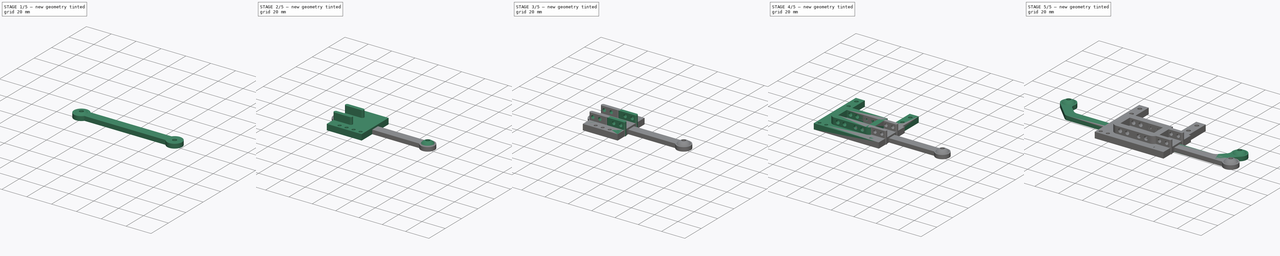
[diagram: build sequence overview — one tinted view per stage of 5, left to right]
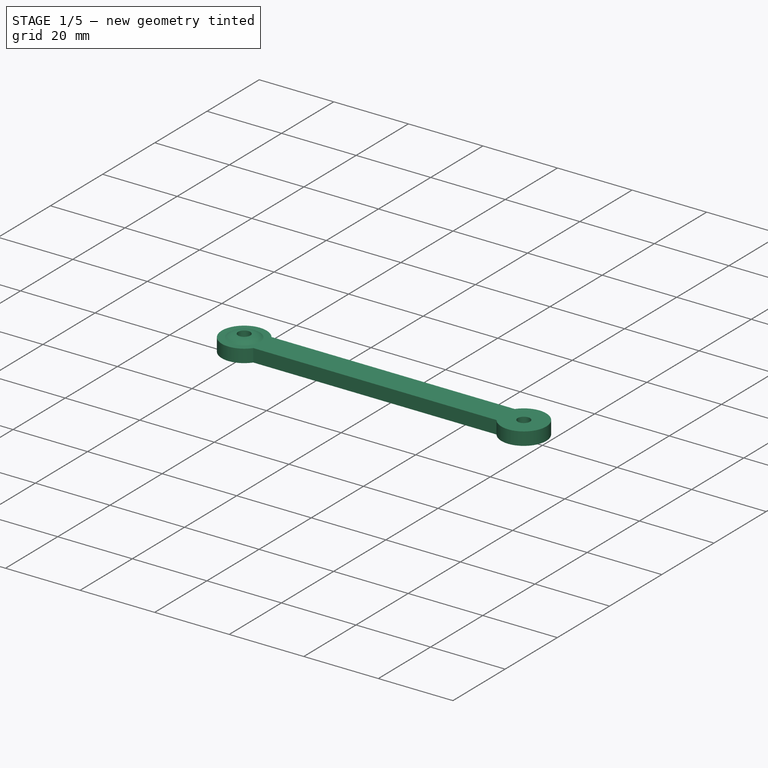
[diagram: stage 1 of 5 — iso view after this stage's code; geometry added in this stage tinted green]
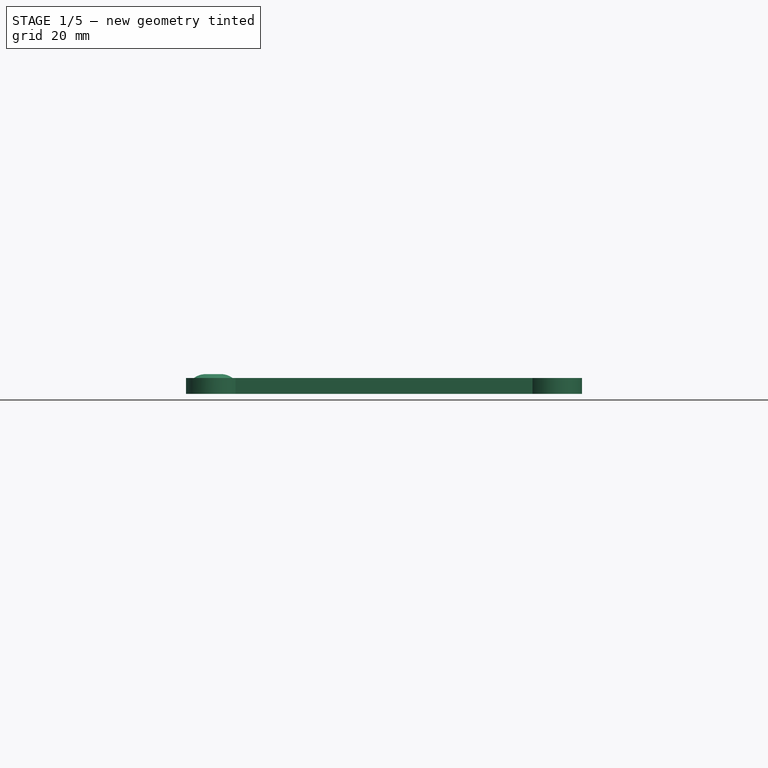
[diagram: stage 1 of 5 — front view after this stage's code; geometry added in this stage tinted green]
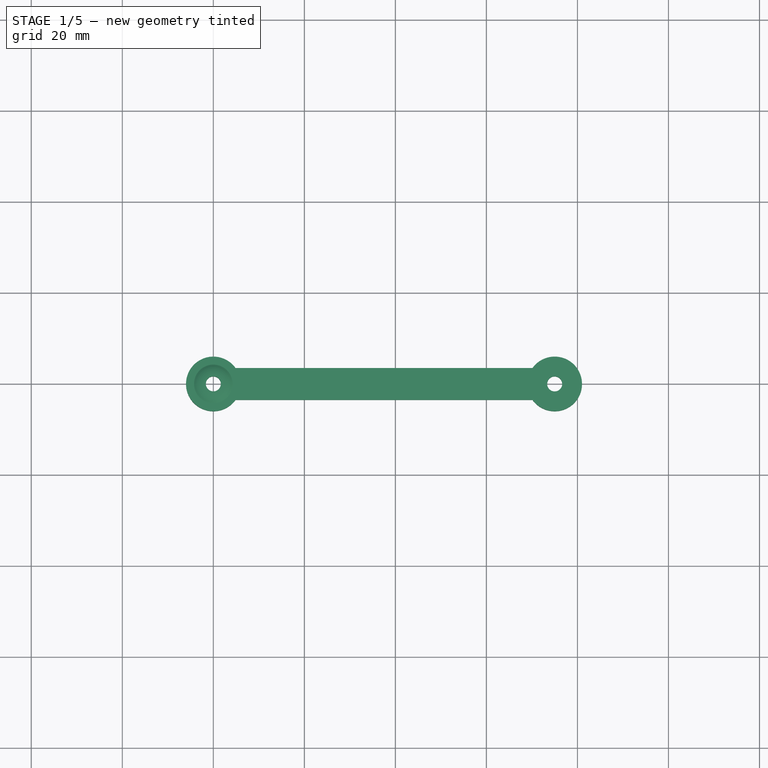
[diagram: stage 1 of 5 — top view after this stage's code; geometry added in this stage tinted green]
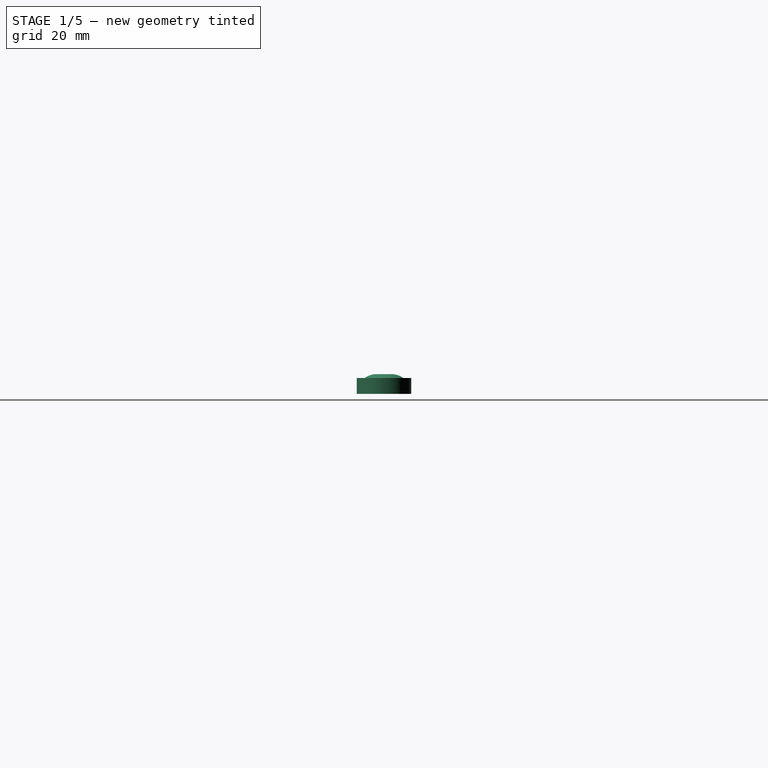
[diagram: stage 1 of 5 — right view after this stage's code; geometry added in this stage tinted green]
FCSTD DOCUMENT  (FreeCAD 0.20R29177 +426 (Git))
Label: frontalConnectors
License: All rights reserved
LicenseURL: http://en.wikipedia.org/wiki/All_rights_reserved
objects: Sketcher::SketchObject×16, PartDesign::Pad×9, PartDesign::Body×6, PartDesign::Revolution×4, PartDesign::Pocket×3, PartDesign::Line×2, Spreadsheet::Sheet×1
note: 56 computed .brp shape members not serialized (recipe doc carries the construction recipe); baked Part::Feature solids carry a one-line shape summary decoded from their .brp

FEATURE [PartDesign::Body] Body003  label="Body003SideCoverRight"
  Group = -> [Sketch009,Pad005,Sketch010,Pad006,Sketch011,Pocket002]
  Origin = -> Origin003
  Tip = -> Pocket002
FEATURE [Sketcher::SketchObject] Sketch012
  FullyConstrained = true
  MapMode = 5
  Support = -> [XY_Plane004]
  expr: Constraints[12] = Spreadsheet.connWidth
  expr: Constraints[16] = Spreadsheet.screwLose
  expr: Constraints[4] = Spreadsheet.frontSteeringRodLength
  expr: Constraints[6] = Spreadsheet.connEndR
  sketch-geometry (6):
    g0: ArcOfCircle CenterX=0 CenterY=0 CenterZ=0 NormalX=0 NormalY=0 NormalZ=1 AngleXU=0 Radius=6 StartAngle=0.622827 EndAngle=5.66036
    g1: LineSegment StartX=4.8734 StartY=3.5 StartZ=0 EndX=70.1266 EndY=3.5 EndZ=0
    g2: LineSegment StartX=70.1266 StartY=-3.5 StartZ=0 EndX=4.8734 EndY=-3.5 EndZ=0
    g3: ArcOfCircle CenterX=75 CenterY=0 CenterZ=0 NormalX=0 NormalY=0 NormalZ=1 AngleXU=0 Radius=6 StartAngle=3.76442 EndAngle=8.80195
    g4: Circle CenterX=0 CenterY=0 CenterZ=0 NormalX=0 NormalY=0 NormalZ=1 AngleXU=0 Radius=1.65
    g5: Circle CenterX=75 CenterY=0 CenterZ=0 NormalX=0 NormalY=0 NormalZ=1 AngleXU=0 Radius=1.65
  constraints (17):
    c: Coincident(g0,g-1)
    c: Horizontal(g1)
    c: Horizontal(g2)
    c: PointOnObject(g3,g-1)
    c: DistanceX(g0,g3) = 75
    c: Equal(g0,g3)
    c: Radius(g0) = 6
    c: Coincident(g1,g0)
    c: Coincident(g2,g0)
    c: Coincident(g3,g1)
    c: Coincident(g3,g2)
    c: Symmetric(g0,g0,g-1)
    c: DistanceY(g0,g0) = 7
    c: Coincident(g4,g0)
    c: Coincident(g5,g3)
    c: Equal(g4,g5)
    c: Radius(g4) = 1.65
FEATURE [PartDesign::Pad] Pad007
  Direction = (0,0,1)
  Length = 3.5
  Length2 = 10
  Profile = -> Sketch012
  ReferenceAxis = -> Sketch012 [N_Axis]
  Type = 0
  expr: Length = Spreadsheet.connPad
FEATURE [Sketcher::SketchObject] Sketch013
  FullyConstrained = true
  MapMode = 5
  Placement = pos=(0,0,0) rot=(1,0,0;1.5708rad)
  Support = -> [XZ_Plane004]
  expr: Constraints[0] = Spreadsheet.screwLose
  expr: Constraints[7] = Spreadsheet.connEndR - Spreadsheet.screwLose
  sketch-geometry (3):
    g0: ArcOfCircle CenterX=-1.65 CenterY=0 CenterZ=0 NormalX=0 NormalY=0 NormalZ=1 AngleXU=0 Radius=4.35 StartAngle=1.5708 EndAngle=3.14159
    g1: LineSegment StartX=-6 StartY=0 StartZ=0 EndX=-1.65 EndY=0 EndZ=0
    g2: LineSegment StartX=-1.65 StartY=0 StartZ=0 EndX=-1.65 EndY=4.35 EndZ=0
  constraints (9):
    c: DistanceX(g0,g-1) = 1.65
    c: Coincident(g1,g0)
    c: Horizontal(g1)
    c: Coincident(g2,g0)
    c: Vertical(g2)
    c: Coincident(g0,g1)
    c: Coincident(g0,g2)
    c: DistanceX(g1,g1) = 4.35
    c: PointOnObject(g0,g-1)
FEATURE [PartDesign::Revolution] Revolution002
  Angle = 360
  Axis = (0,-2e-16,1)
  Base = (0,0,0)
  BaseFeature = -> Pad007
  Profile = -> Sketch013
  ReferenceAxis = -> Sketch013 [V_Axis]
FEATURE [PartDesign::Body] Body004  label="Body004FrontSteeringRod"
  Group = -> [Sketch012,Pad007,Sketch013,Revolution002,Sketch014,Revolution003]
  Origin = -> Origin004
  Tip = -> Revolution003
FEATURE [Sketcher::SketchObject] Sketch015
  FullyConstrained = false
  MapMode = 5
  Support = -> [XY_Plane005]
  expr: Constraints[1] = Spreadsheet.screwLose
  sketch-geometry (2):
    g0: Circle CenterX=0 CenterY=0 CenterZ=0 NormalX=0 NormalY=0 NormalZ=1 AngleXU=0 Radius=1.65
    g1: Circle CenterX=0 CenterY=0 CenterZ=0 NormalX=0 NormalY=0 NormalZ=1 AngleXU=0 Radius=3.33495
  constraints (3):
    c: Coincident(g0,g-1)
    c: Radius(g0) = 1.65
    c: Coincident(g1,g0)
FEATURE [PartDesign::Pad] Pad008
  Direction = (0,0,1)
  Length = 2
  Length2 = 10
  Profile = -> Sketch015
  ReferenceAxis = -> Sketch015 [N_Axis]
  Type = 0
FEATURE [PartDesign::Body] Body005  label="Body005Test"
  Group = -> [Sketch015,Pad008]
  Origin = -> Origin005
  Tip = -> Pad008
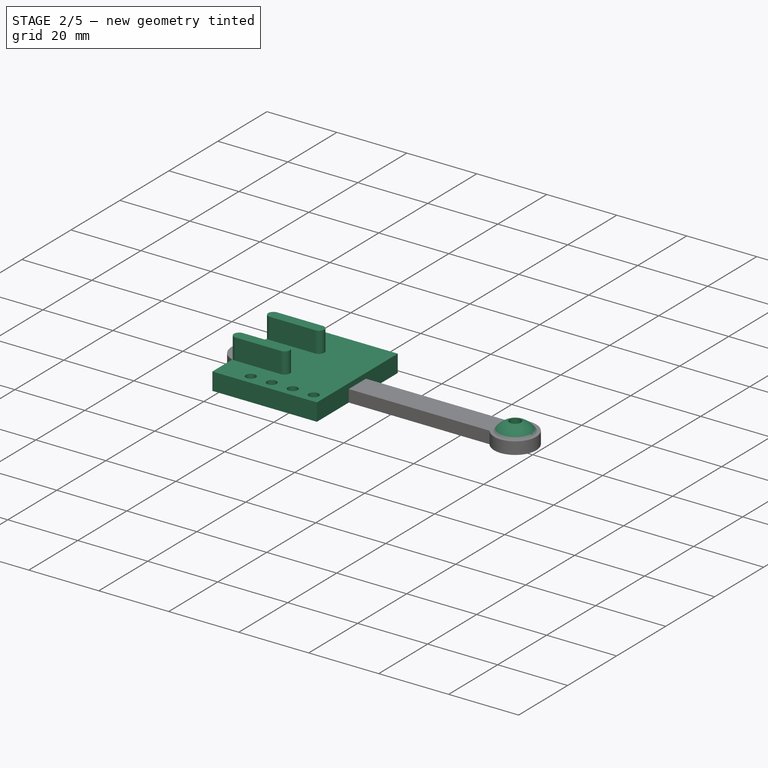
[diagram: stage 2 of 5 — iso view after this stage's code; geometry added in this stage tinted green]
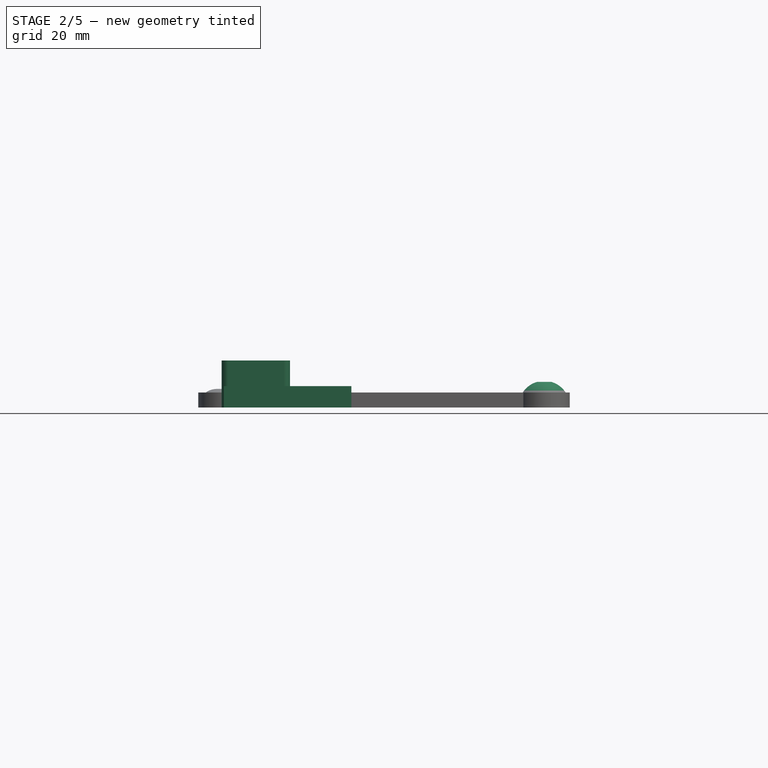
[diagram: stage 2 of 5 — front view after this stage's code; geometry added in this stage tinted green]
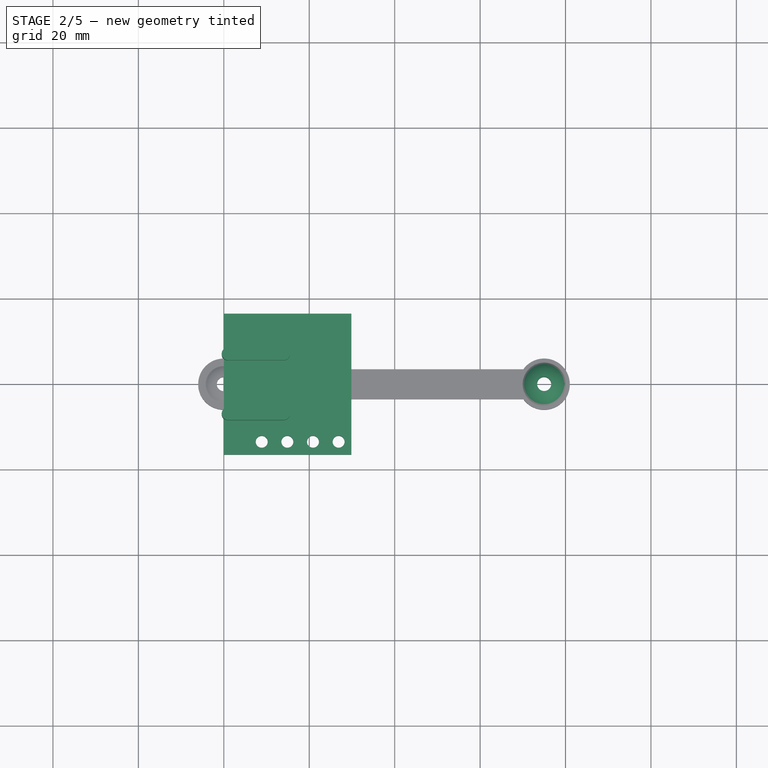
[diagram: stage 2 of 5 — top view after this stage's code; geometry added in this stage tinted green]
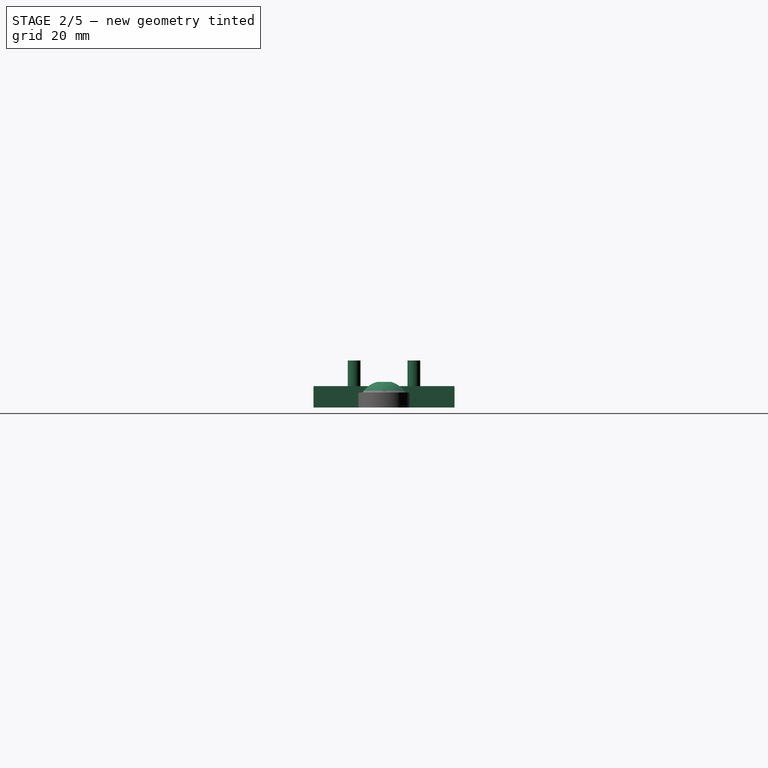
[diagram: stage 2 of 5 — right view after this stage's code; geometry added in this stage tinted green]
FEATURE [PartDesign::Body] Body002  label="Body002SideCover"
  Group = -> [Sketch006,Pad003,Sketch007,Pad004,Sketch008,Pocket001]
  Origin = -> Origin002
  Tip = -> Pocket001
FEATURE [Sketcher::SketchObject] Sketch009
  FullyConstrained = true
  MapMode = 5
  Support = -> [XY_Plane003]
  expr: Constraints[14] = Spreadsheet.serverHolderScrewDistBetween
  expr: Constraints[16] = Spreadsheet.screwTight
  expr: Constraints[17] = Spreadsheet.serverConnCenterToRear
  expr: Constraints[19] = Spreadsheet.serverHolderScrewDistBetween
  expr: Constraints[22] = Spreadsheet.serverHolderScrewDistBetween
  expr: Constraints[23] = Spreadsheet.serverConnCenterToRear
  expr: Constraints[24] = Spreadsheet.serverHolderScrewToSide
  expr: Constraints[25] = Spreadsheet.serverHolderScrewToSide
  expr: Constraints[9] = Spreadsheet.sideCoverFullWidth
  sketch-geometry (9):
    g0: LineSegment StartX=0 StartY=16.5 StartZ=0 EndX=29.875 EndY=16.5 EndZ=0
    g1: LineSegment StartX=29.875 StartY=16.5 StartZ=0 EndX=29.875 EndY=-16.5 EndZ=0
    g2: LineSegment StartX=29.875 StartY=-16.5 StartZ=0 EndX=0 EndY=-16.5 EndZ=0
    g3: LineSegment StartX=0 StartY=-16.5 StartZ=0 EndX=0 EndY=16.5 EndZ=0
    g4: LineSegment StartX=0 StartY=-13.5 StartZ=0 EndX=26.875 EndY=-13.5 EndZ=0
    g5: Circle CenterX=8.875 CenterY=-13.5 CenterZ=0 NormalX=0 NormalY=0 NormalZ=1 AngleXU=0 Radius=1.4
    g6: Circle CenterX=14.875 CenterY=-13.5 CenterZ=0 NormalX=0 NormalY=0 NormalZ=1 AngleXU=0 Radius=1.4
    g7: Circle CenterX=26.875 CenterY=-13.5 CenterZ=0 NormalX=0 NormalY=0 NormalZ=1 AngleXU=0 Radius=1.4
    g8: Circle CenterX=20.875 CenterY=-13.5 CenterZ=0 NormalX=0 NormalY=0 NormalZ=1 AngleXU=0 Radius=1.4
  constraints (27):
    c: Coincident(g0,g1)
    c: Coincident(g1,g2)
    c: Coincident(g2,g3)
    c: Coincident(g3,g0)
    c: Horizontal(g0)
    c: Horizontal(g2)
    c: Vertical(g1)
    c: Vertical(g3)
    c: PointOnObject(g2,g-2)
    c: DistanceX(g2,g2) = 29.875
    c: PointOnObject(g4,g3)
    c: Horizontal(g4)
    c: PointOnObject(g5,g4)
    c: PointOnObject(g6,g4)
    c: DistanceX(g5,g6) = 6
    c: Equal(g6,g5)
    c: Radius(g6) = 1.4
    c: DistanceY(g-1,g0) = 16.5
    c: PointOnObject(g8,g4)
    c: DistanceX(g8,g7) = 6
    c: Equal(g7,g8)
    c: Equal(g8,g6)
    c: DistanceX(g6,g8) = 6
    c: DistanceY(g1,g-1) = 16.5
    c: DistanceY(g2,g4) = 3
    c: DistanceX(g4,g1) = 3
    c: Coincident(g7,g4)
FEATURE [PartDesign::Pad] Pad005
  Direction = (0,0,1)
  Length = 5
  Length2 = 10
  Profile = -> Sketch009
  ReferenceAxis = -> Sketch009 [N_Axis]
  Type = 0
  expr: Length = Spreadsheet.sideCoverPad
FEATURE [Sketcher::SketchObject] Sketch010  label="Sketch007Conn001"
  FullyConstrained = true
  MapMode = 5
  Support = -> [XY_Plane003]
  expr: Constraints[13] = Spreadsheet.sideCoverDownPad
  expr: Constraints[14] = Spreadsheet.sideConnWidth
  expr: Constraints[15] = Spreadsheet.sideCoverFullWidth - (Spreadsheet.serverHolderScrewDistBetween + Spreadsheet.sideCoverCenterToFirstScrew + 2)
  expr: Constraints[16] = Spreadsheet.sideCoverFullWidth - (Spreadsheet.sideCoverCenterToFirstScrew - 5)
  sketch-geometry (8):
    g0: ArcOfCircle CenterX=1 CenterY=7 CenterZ=0 NormalX=0 NormalY=0 NormalZ=1 AngleXU=0 Radius=1.5 StartAngle=1.5708 EndAngle=4.71239
    g1: ArcOfCircle CenterX=14 CenterY=7 CenterZ=0 NormalX=0 NormalY=0 NormalZ=1 AngleXU=0 Radius=1.5 StartAngle=4.71239 EndAngle=7.85398
    g2: LineSegment StartX=1 StartY=5.5 StartZ=0 EndX=14 EndY=5.5 EndZ=0
    g3: LineSegment StartX=14 StartY=8.5 StartZ=0 EndX=1 EndY=8.5 EndZ=0
    g4: ArcOfCircle CenterX=1 CenterY=-7 CenterZ=0 NormalX=0 NormalY=0 NormalZ=1 AngleXU=0 Radius=1.5 StartAngle=1.5708 EndAngle=4.71239
    g5: ArcOfCircle CenterX=14 CenterY=-7 CenterZ=0 NormalX=0 NormalY=0 NormalZ=1 AngleXU=0 Radius=1.5 StartAngle=4.71239 EndAngle=7.85398
    g6: LineSegment StartX=1 StartY=-8.5 StartZ=0 EndX=14 EndY=-8.5 EndZ=0
    g7: LineSegment StartX=14 StartY=-5.5 StartZ=0 EndX=1 EndY=-5.5 EndZ=0
  constraints (18):
    c: Tangent(g0,g2) = -1.5708
    c: Tangent(g2,g1) = -1.5708
    c: Tangent(g1,g3) = -1.5708
    c: Tangent(g3,g0) = -1.5708
    c: Equal(g0,g1)
    c: Horizontal(g2)
    c: Tangent(g4,g6) = -1.5708
    c: Tangent(g6,g5) = -1.5708
    c: Tangent(g5,g7) = -1.5708
    c: Tangent(g7,g4) = -1.5708
    c: Equal(g4,g5)
    c: Horizontal(g6)
    c: Symmetric(g0,g4,g-1)
    c: Distance(g1,g1) = 3
    c: Distance(g0,g4) = 11
    c: DistanceX(g-1,g0) = 1
    c: DistanceX(g-1,g1) = 14
    c: Symmetric(g1,g5,g-1)
FEATURE [PartDesign::Pad] Pad006
  BaseFeature = -> Pad005
  Direction = (0,0,1)
  Length = 11
  Length2 = 10
  Profile = -> Sketch010
  ReferenceAxis = -> Sketch010 [N_Axis]
  Type = 0
  expr: Length = Spreadsheet.serverHolderCenterConnHeight
FEATURE [Sketcher::SketchObject] Sketch014
  AttachmentOffset = pos=(75,0,0) rot=(0,0,1;0rad)
  FullyConstrained = true
  MapMode = 5
  Placement = pos=(75,0,0) rot=(1,0,0;1.5708rad)
  Support = -> [XZ_Plane004]
  expr: .AttachmentOffset.Base.x = Spreadsheet.frontSteeringRodLength
  expr: Constraints[0] = Spreadsheet.connEndR
  expr: Constraints[6] = Spreadsheet.screwLose
  expr: Constraints[8] = Spreadsheet.connEndR - Spreadsheet.screwLose
  expr: Constraints[9] = Spreadsheet.connEndR
  sketch-geometry (3):
    g0: ArcOfCircle CenterX=0.0044128 CenterY=0.230074 CenterZ=0 NormalX=0 NormalY=0 NormalZ=1 AngleXU=0 Radius=6 StartAngle=6.24483 EndAngle=7.57616
    g1: LineSegment StartX=6 StartY=0 StartZ=0 EndX=1.65 EndY=0 EndZ=0
    g2: LineSegment StartX=1.65 StartY=0 StartZ=0 EndX=1.65 EndY=6 EndZ=0
  constraints (10):
    c: Radius(g0) = 6
    c: Coincident(g1,g0)
    c: Horizontal(g1)
    c: Coincident(g2,g1)
    c: Vertical(g2)
    c: Coincident(g0,g2)
    c: DistanceX(g-1,g1) = 1.65
    c: PointOnObject(g0,g-1)
    c: DistanceX(g1,g1) = 4.35
    c: DistanceY(g2,g2) = 6
FEATURE [PartDesign::Revolution] Revolution003
  Angle = 360
  Axis = (0,-2e-16,1)
  Base = (75,0,0)
  BaseFeature = -> Revolution002
  Profile = -> Sketch014
  ReferenceAxis = -> Sketch014 [V_Axis]
  Reversed = true
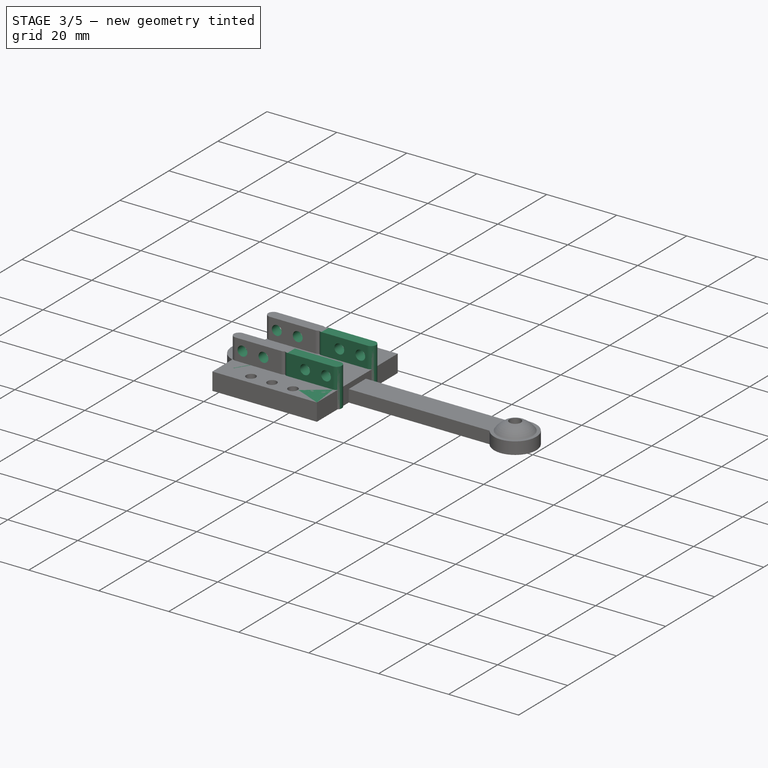
[diagram: stage 3 of 5 — iso view after this stage's code; geometry added in this stage tinted green]
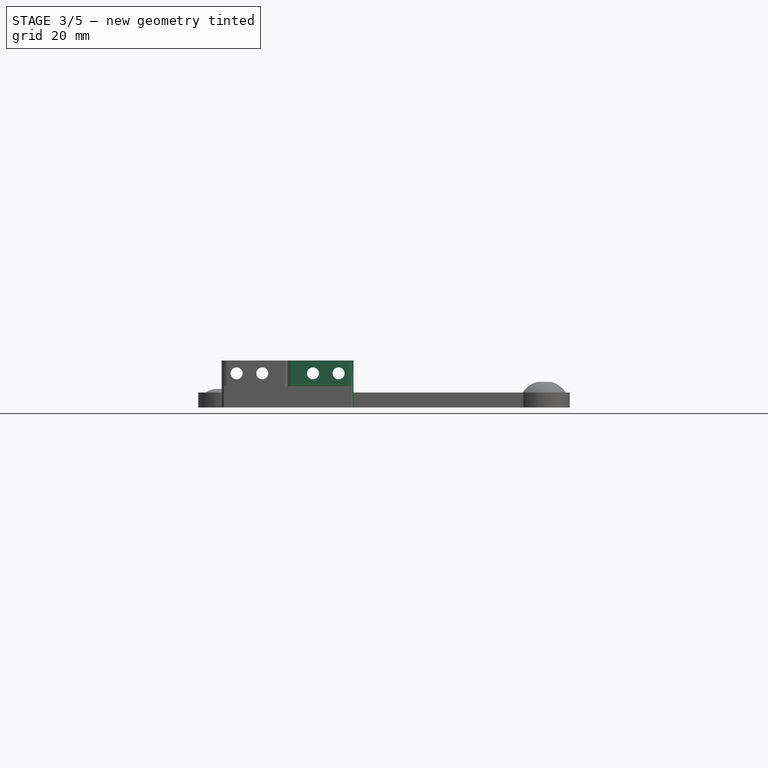
[diagram: stage 3 of 5 — front view after this stage's code; geometry added in this stage tinted green]
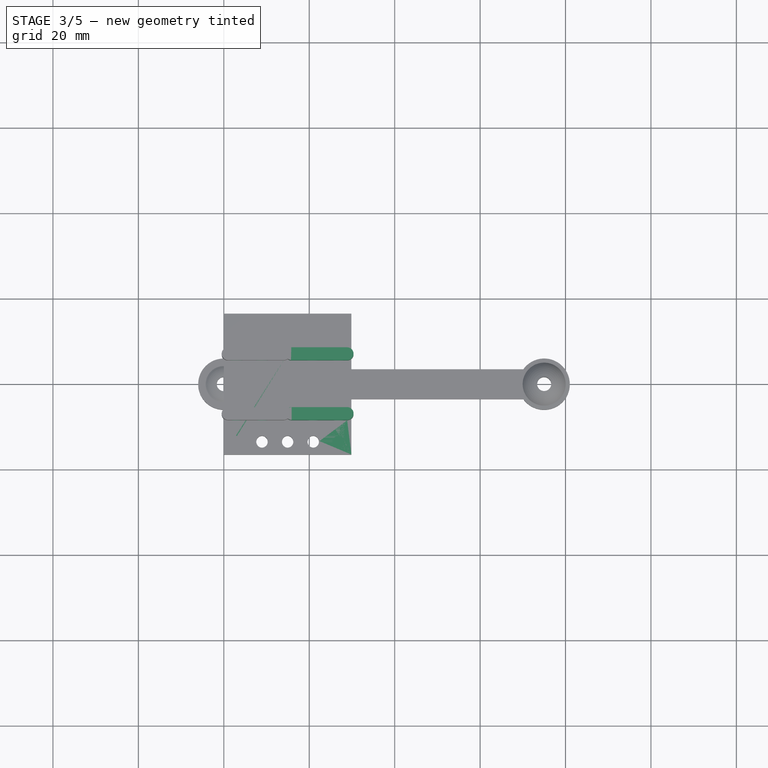
[diagram: stage 3 of 5 — top view after this stage's code; geometry added in this stage tinted green]
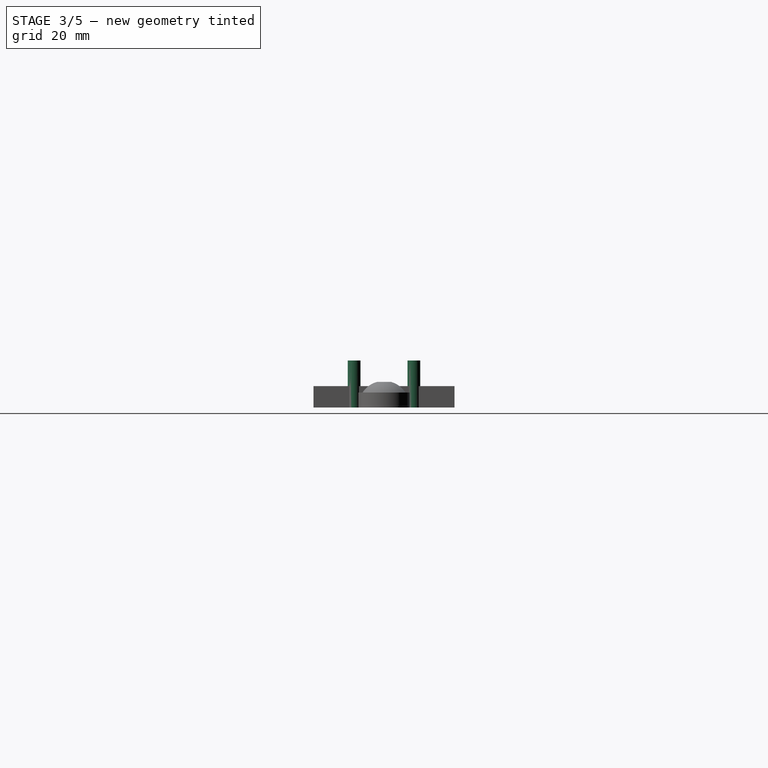
[diagram: stage 3 of 5 — right view after this stage's code; geometry added in this stage tinted green]
FEATURE [PartDesign::Body] Body001  label="Body001ServoHolder"
  Group = -> [Sketch003,Pad001,Sketch004,Pad002,Sketch005,Pocket]
  Origin = -> Origin001
  Tip = -> Pocket
FEATURE [Sketcher::SketchObject] Sketch006
  FullyConstrained = false
  MapMode = 5
  Support = -> [XY_Plane002]
  expr: Constraints[14] = Spreadsheet.serverHolderScrewDistBetween
  expr: Constraints[16] = Spreadsheet.screwTight
  expr: Constraints[17] = Spreadsheet.serverHolderScrewToSide
  expr: Constraints[18] = Spreadsheet.serverConnCenterToRear
  expr: Constraints[21] = Spreadsheet.serverHolderScrewDistBetween
  expr: Constraints[24] = Spreadsheet.serverHolderScrewDistBetween
  expr: Constraints[25] = Spreadsheet.serverConnCenterToRear
  expr: Constraints[26] = Spreadsheet.serverHolderScrewToSide
  expr: Constraints[9] = Spreadsheet.sideCoverFullWidth
  sketch-geometry (9):
    g0: LineSegment StartX=0 StartY=16.5 StartZ=0 EndX=29.875 EndY=16.5 EndZ=0
    g1: LineSegment StartX=29.875 StartY=16.5 StartZ=0 EndX=29.875 EndY=-16.5 EndZ=0
    g2: LineSegment StartX=29.875 StartY=-16.5 StartZ=0 EndX=0 EndY=-16.5 EndZ=0
    g3: LineSegment StartX=0 StartY=-16.5 StartZ=0 EndX=0 EndY=16.5 EndZ=0
    g4: LineSegment StartX=0 StartY=-13.5 StartZ=0 EndX=42.8323 EndY=-13.5 EndZ=0
    g5: Circle CenterX=3 CenterY=-13.5 CenterZ=0 NormalX=0 NormalY=0 NormalZ=1 AngleXU=0 Radius=1.4
    g6: Circle CenterX=9 CenterY=-13.5 CenterZ=0 NormalX=0 NormalY=0 NormalZ=1 AngleXU=0 Radius=1.4
    g7: Circle CenterX=21 CenterY=-13.5 CenterZ=0 NormalX=0 NormalY=0 NormalZ=1 AngleXU=0 Radius=1.4
    g8: Circle CenterX=15 CenterY=-13.5 CenterZ=0 NormalX=0 NormalY=0 NormalZ=1 AngleXU=0 Radius=1.4
  constraints (27):
    c: Coincident(g0,g1)
    c: Coincident(g1,g2)
    c: Coincident(g2,g3)
    c: Coincident(g3,g0)
    c: Horizontal(g0)
    c: Horizontal(g2)
    c: Vertical(g1)
    c: Vertical(g3)
    c: PointOnObject(g2,g-2)
    c: DistanceX(g2,g2) = 29.875
    c: PointOnObject(g4,g3)
    c: Horizontal(g4)
    c: PointOnObject(g5,g4)
    c: PointOnObject(g6,g4)
    c: DistanceX(g5,g6) = 6
    c: Equal(g6,g5)
    c: Radius(g6) = 1.4
    c: DistanceX(g-1,g5) = 3
    c: DistanceY(g-1,g0) = 16.5
    c: PointOnObject(g7,g4)
    c: PointOnObject(g8,g4)
    c: DistanceX(g8,g7) = 6
    c: Equal(g7,g8)
    c: Equal(g8,g6)
    c: DistanceX(g6,g8) = 6
    c: DistanceY(g1,g-1) = 16.5
    c: DistanceY(g2,g4) = 3
FEATURE [PartDesign::Pad] Pad003
  Direction = (0,0,1)
  Length = 5
  Length2 = 10
  Profile = -> Sketch006
  ReferenceAxis = -> Sketch006 [N_Axis]
  Type = 0
  expr: Length = Spreadsheet.sideCoverPad
FEATURE [Sketcher::SketchObject] Sketch007  label="Sketch007Conn"
  FullyConstrained = true
  MapMode = 5
  Support = -> [XY_Plane002]
  expr: Constraints[13] = Spreadsheet.sideCoverDownPad
  expr: Constraints[14] = Spreadsheet.sideConnWidth
  expr: Constraints[15] = Spreadsheet.sideCoverCenterToFirstScrew - 5
  expr: Constraints[16] = Spreadsheet.serverHolderScrewDistBetween + Spreadsheet.sideCoverCenterToFirstScrew + 2
  sketch-geometry (8):
    g0: ArcOfCircle CenterX=15.875 CenterY=7 CenterZ=0 NormalX=0 NormalY=0 NormalZ=1 AngleXU=0 Radius=1.5 StartAngle=1.5708 EndAngle=4.71239
    g1: ArcOfCircle CenterX=28.875 CenterY=7 CenterZ=0 NormalX=0 NormalY=0 NormalZ=1 AngleXU=0 Radius=1.5 StartAngle=4.71239 EndAngle=7.85398
    g2: LineSegment StartX=15.875 StartY=5.5 StartZ=0 EndX=28.875 EndY=5.5 EndZ=0
    g3: LineSegment StartX=28.875 StartY=8.5 StartZ=0 EndX=15.875 EndY=8.5 EndZ=0
    g4: ArcOfCircle CenterX=15.875 CenterY=-7 CenterZ=0 NormalX=0 NormalY=0 NormalZ=1 AngleXU=0 Radius=1.5 StartAngle=1.5708 EndAngle=4.71239
    g5: ArcOfCircle CenterX=28.875 CenterY=-7 CenterZ=0 NormalX=0 NormalY=0 NormalZ=1 AngleXU=0 Radius=1.5 StartAngle=4.71239 EndAngle=7.85398
    g6: LineSegment StartX=15.875 StartY=-8.5 StartZ=0 EndX=28.875 EndY=-8.5 EndZ=0
    g7: LineSegment StartX=28.875 StartY=-5.5 StartZ=0 EndX=15.875 EndY=-5.5 EndZ=0
  constraints (18):
    c: Tangent(g0,g2) = -1.5708
    c: Tangent(g2,g1) = -1.5708
    c: Tangent(g1,g3) = -1.5708
    c: Tangent(g3,g0) = -1.5708
    c: Equal(g0,g1)
    c: Horizontal(g2)
    c: Tangent(g4,g6) = -1.5708
    c: Tangent(g6,g5) = -1.5708
    c: Tangent(g5,g7) = -1.5708
    c: Tangent(g7,g4) = -1.5708
    c: Equal(g4,g5)
    c: Horizontal(g6)
    c: Symmetric(g0,g4,g-1)
    c: Distance(g1,g1) = 3
    c: Distance(g0,g4) = 11
    c: DistanceX(g-1,g0) = 15.875
    c: DistanceX(g-1,g1) = 28.875
    c: Symmetric(g1,g5,g-1)
FEATURE [PartDesign::Pad] Pad004
  BaseFeature = -> Pad003
  Direction = (0,0,1)
  Length = 11
  Length2 = 10
  Profile = -> Sketch007
  ReferenceAxis = -> Sketch007 [N_Axis]
  Type = 0
  expr: Length = Spreadsheet.serverHolderCenterConnHeight
FEATURE [Sketcher::SketchObject] Sketch008
  FullyConstrained = false
  MapMode = 5
  Placement = pos=(0,0,0) rot=(1,0,0;1.5708rad)
  Support = -> [XZ_Plane002]
  expr: Constraints[1] = Spreadsheet.serverHolderScrewToSide + Spreadsheet.sideCoverPad
  expr: Constraints[4] = Spreadsheet.serverHolderScrewDistBetween
  expr: Constraints[5] = Spreadsheet.sideCoverCenterToFirstScrew
  expr: Constraints[7] = Spreadsheet.screwTight
  sketch-geometry (3):
    g0: LineSegment StartX=-3.8391 StartY=8 StartZ=0 EndX=32.0257 EndY=8 EndZ=0
    g1: Circle CenterX=20.875 CenterY=8 CenterZ=0 NormalX=0 NormalY=0 NormalZ=1 AngleXU=0 Radius=1.4
    g2: Circle CenterX=26.875 CenterY=8 CenterZ=0 NormalX=0 NormalY=0 NormalZ=1 AngleXU=0 Radius=1.4
  constraints (8):
    c: Horizontal(g0)
    c: DistanceY(g-1,g0) = 8
    c: PointOnObject(g1,g0)
    c: PointOnObject(g2,g0)
    c: DistanceX(g1,g2) = 6
    c: DistanceX(g-1,g1) = 20.875
    c: Equal(g2,g1)
    c: Radius(g2) = 1.4
FEATURE [PartDesign::Pocket] Pocket001
  BaseFeature = -> Pad004
  Direction = (0,1,2e-16)
  Length = 5
  Length2 = 5
  Midplane = true
  Profile = -> Sketch008
  ReferenceAxis = -> Sketch008 [N_Axis]
  Type = 1
FEATURE [Sketcher::SketchObject] Sketch011
  FullyConstrained = false
  MapMode = 5
  Placement = pos=(0,0,0) rot=(1,0,0;1.5708rad)
  Support = -> [XZ_Plane003]
  expr: Constraints[1] = Spreadsheet.serverHolderScrewToSide + Spreadsheet.sideCoverPad
  expr: Constraints[4] = Spreadsheet.serverHolderScrewDistBetween
  expr: Constraints[6] = Spreadsheet.screwTight
  expr: Constraints[7] = Spreadsheet.sideCoverFullWidth - Spreadsheet.sideCoverCenterToFirstScrew
  sketch-geometry (3):
    g0: LineSegment StartX=-3.8391 StartY=8 StartZ=0 EndX=32.0257 EndY=8 EndZ=0
    g1: Circle CenterX=3 CenterY=8 CenterZ=0 NormalX=0 NormalY=0 NormalZ=1 AngleXU=0 Radius=1.4
    g2: Circle CenterX=9 CenterY=8 CenterZ=0 NormalX=0 NormalY=0 NormalZ=1 AngleXU=0 Radius=1.4
  constraints (8):
    c: Horizontal(g0)
    c: DistanceY(g-1,g0) = 8
    c: PointOnObject(g1,g0)
    c: PointOnObject(g2,g0)
    c: DistanceX(g1,g2) = 6
    c: Equal(g2,g1)
    c: Radius(g2) = 1.4
    c: DistanceX(g-1,g2) = 9
FEATURE [PartDesign::Pocket] Pocket002
  BaseFeature = -> Pad006
  Direction = (0,1,2e-16)
  Length = 5
  Length2 = 5
  Midplane = true
  Profile = -> Sketch011
  ReferenceAxis = -> Sketch011 [N_Axis]
  Type = 1
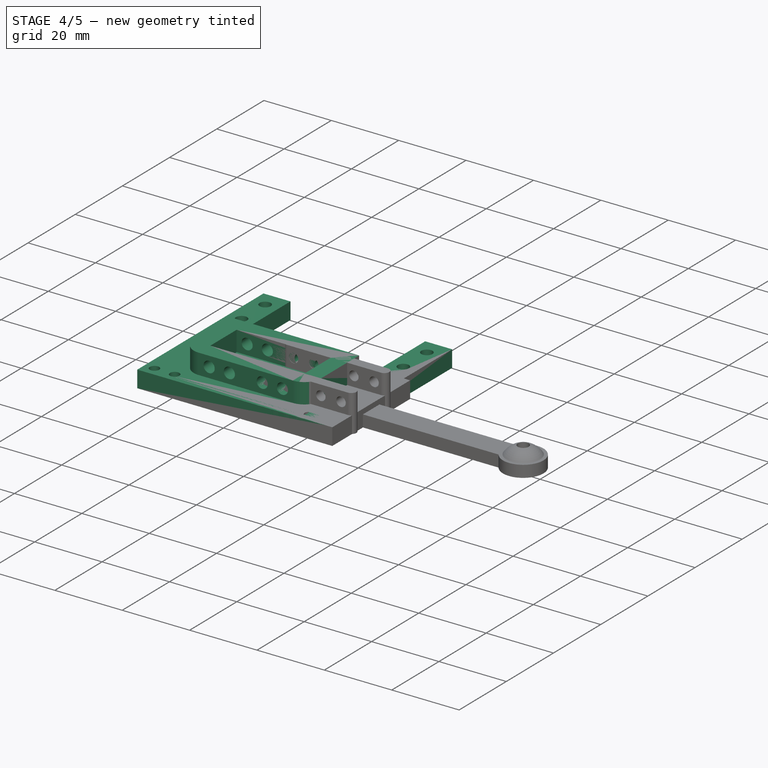
[diagram: stage 4 of 5 — iso view after this stage's code; geometry added in this stage tinted green]
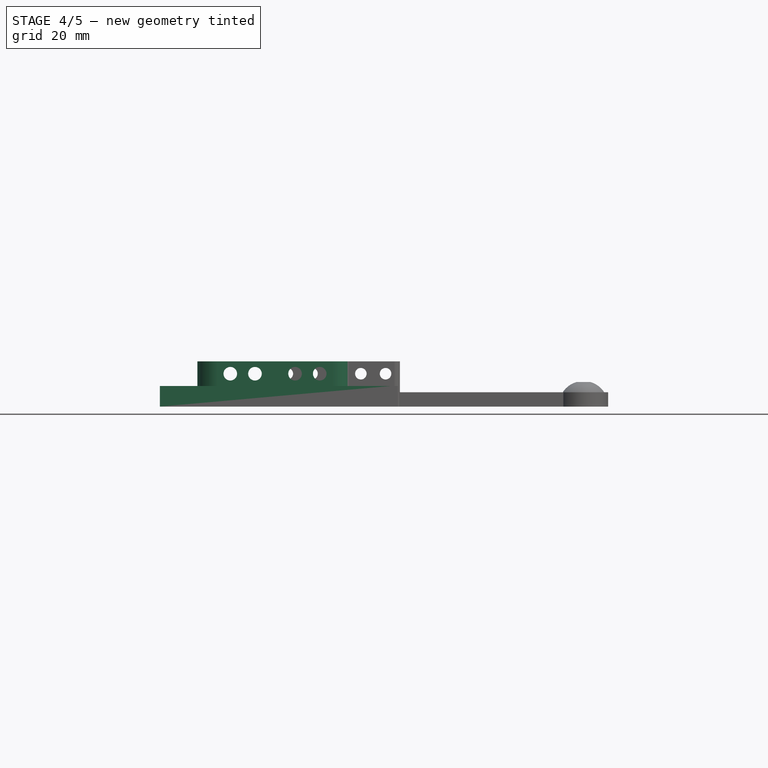
[diagram: stage 4 of 5 — front view after this stage's code; geometry added in this stage tinted green]
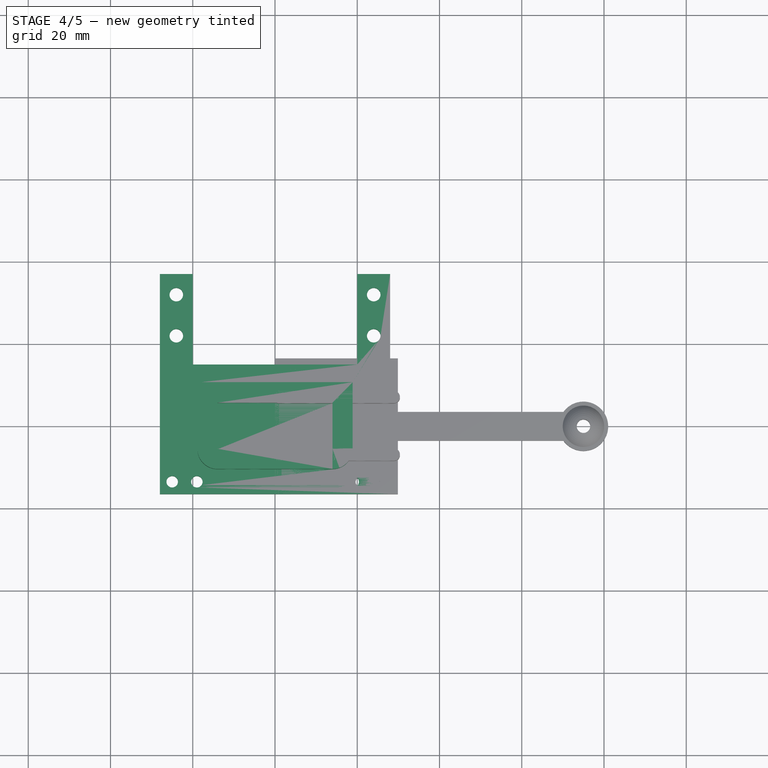
[diagram: stage 4 of 5 — top view after this stage's code; geometry added in this stage tinted green]
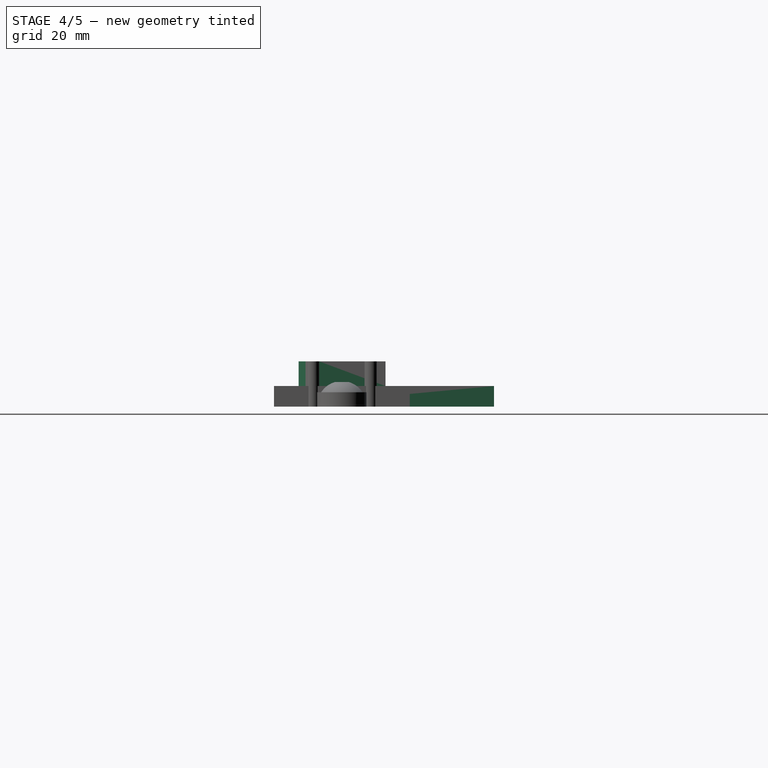
[diagram: stage 4 of 5 — right view after this stage's code; geometry added in this stage tinted green]
FEATURE [PartDesign::Body] Body  label="BodyLongTurnConnector"
  Group = -> [Sketch,Pad,DatumLine,DatumLine001,Sketch001,Revolution,Sketch002,Revolution001]
  Origin = -> Origin
  Tip = -> Revolution001
FEATURE [Sketcher::SketchObject] Sketch003  label="Sketch003ServoHolder"
  FullyConstrained = false
  MapMode = 5
  Support = -> [XY_Plane001]
  expr: Constraints[12] = Spreadsheet.servoHolderSideLen
  expr: Constraints[24] = Spreadsheet.servoHolderScrewToW
  expr: Constraints[26] = Spreadsheet.serverHolderCenterToScrewH
  expr: Constraints[27] = Spreadsheet.servoHolderScrewSep
  expr: Constraints[35] = Spreadsheet.screwLose
  expr: Constraints[38] = Spreadsheet.serverHolderScrewToSide
  expr: Constraints[39] = Spreadsheet.serverHolderScrewDistBetween
  expr: Constraints[43] = Spreadsheet.screwTight
  expr: Constraints[44] = Spreadsheet.servoHolderCenterConnHousingHalfH + Spreadsheet.serverConnSideAdj / 2 + Spreadsheet.serverHolderRearDistToHousingHolder
  expr: Constraints[46] = Spreadsheet.serverConnCenterToRear - Spreadsheet.serverHolderScrewToSide
  expr: Constraints[5] = Spreadsheet.servoHolderWidth
  expr: Constraints[6] = Spreadsheet.servoHolderH
  expr: Constraints[7] = Spreadsheet.servoHolderConnFrontLen
  sketch-geometry (20):
    g0: LineSegment StartX=-20 StartY=37 StartZ=0 EndX=-20 EndY=15 EndZ=0
    g1: LineSegment StartX=-20 StartY=15 StartZ=0 EndX=20 EndY=15 EndZ=0
    g2: LineSegment StartX=20 StartY=15 StartZ=0 EndX=20 EndY=37 EndZ=0
    g3: LineSegment StartX=20 StartY=37 StartZ=0 EndX=28 EndY=37 EndZ=0
    g4: LineSegment StartX=-20 StartY=37 StartZ=0 EndX=-28 EndY=37 EndZ=0
    g5: LineSegment StartX=28 StartY=37 StartZ=0 EndX=28 EndY=-16.5 EndZ=0
    g6: LineSegment StartX=-28 StartY=37 StartZ=0 EndX=-28 EndY=-16.5 EndZ=0
    g7: LineSegment StartX=-28 StartY=-16.5 StartZ=0 EndX=28 EndY=-16.5 EndZ=0
    g8: LineSegment StartX=24 StartY=32 StartZ=0 EndX=24 EndY=22 EndZ=0
    g9: LineSegment StartX=24 StartY=32 StartZ=0 EndX=-24 EndY=32 EndZ=0
    g10: LineSegment StartX=-24 StartY=32 StartZ=0 EndX=-24 EndY=22 EndZ=0
    g11: Circle CenterX=24 CenterY=32 CenterZ=0 NormalX=0 NormalY=0 NormalZ=1 AngleXU=0 Radius=1.65
    g12: Circle CenterX=-24 CenterY=32 CenterZ=0 NormalX=0 NormalY=0 NormalZ=1 AngleXU=0 Radius=1.65
    g13: Circle CenterX=-24 CenterY=22 CenterZ=0 NormalX=0 NormalY=0 NormalZ=1 AngleXU=0 Radius=1.65
    g14: Circle CenterX=24 CenterY=22 CenterZ=0 NormalX=0 NormalY=0 NormalZ=1 AngleXU=0 Radius=1.65
    g15: Circle CenterX=25 CenterY=-13.5 CenterZ=0 NormalX=0 NormalY=0 NormalZ=1 AngleXU=0 Radius=1.4
    g16: Circle CenterX=-25 CenterY=-13.5 CenterZ=0 NormalX=0 NormalY=0 NormalZ=1 AngleXU=0 Radius=1.4
    g17: Circle CenterX=-19 CenterY=-13.5 CenterZ=0 NormalX=0 NormalY=0 NormalZ=1 AngleXU=0 Radius=1.4
    g18: Circle CenterX=19 CenterY=-13.5 CenterZ=0 NormalX=0 NormalY=0 NormalZ=1 AngleXU=0 Radius=1.4
    g19: LineSegment StartX=12.7862 StartY=-13.5 StartZ=0 EndX=34.2165 EndY=-13.5 EndZ=0
  constraints (49):
    c: Coincident(g1,g0)
    c: Coincident(g2,g1)
    c: Vertical(g2)
    c: Symmetric(g1,g0,g-2)
    c: Symmetric(g2,g0,g-2)
    c: DistanceX(g1,g1) = 40
    c: DistanceY(g2,g2) = 22
    c: DistanceY(g-1,g1) = 15
    c: Coincident(g3,g2)
    c: Horizontal(g3)
    c: Coincident(g4,g0)
    c: Symmetric(g3,g4,g-2)
    c: DistanceX(g3,g3) = 8
    c: Coincident(g5,g3)
    c: Vertical(g5)
    c: Coincident(g6,g4)
    c: Vertical(g6)
    c: Coincident(g7,g6)
    c: Coincident(g7,g5)
    c: Horizontal(g7)
    c: Vertical(g8)
    c: Coincident(g9,g8)
    c: Coincident(g10,g9)
    c: Symmetric(g8,g9,g-2)
    c: DistanceX(g1,g8) = 4
    c: Symmetric(g8,g10,g-2)
    c: DistanceY(g-1,g8) = 22
    c: DistanceY(g8,g8) = 10
    c: Coincident(g11,g8)
    c: Coincident(g12,g9)
    c: Coincident(g13,g10)
    c: Coincident(g14,g8)
    c: Equal(g11,g12)
    c: Equal(g12,g13)
    c: Equal(g13,g14)
    c: Radius(g11) = 1.65
    c: Symmetric(g15,g16,g-2)
    c: Symmetric(g18,g17,g-2)
    c: DistanceX(g15,g5) = 3
    c: DistanceX(g18,g15) = 6
    c: Equal(g16,g17)
    c: Equal(g16,g18)
    c: Equal(g16,g15)
    c: Radius(g16) = 1.4
    c: DistanceY(g5,g-1) = 16.5
    c: Horizontal(g19)
    c: DistanceY(g19,g-1) = 13.5
    c: PointOnObject(g15,g19)
    c: PointOnObject(g18,g19)
FEATURE [PartDesign::Pad] Pad001
  Direction = (0,0,1)
  Length = 5
  Length2 = 10
  Profile = -> Sketch003
  ReferenceAxis = -> Sketch003 [N_Axis]
  Type = 0
  expr: Length = Spreadsheet.serverHolderPad
FEATURE [Sketcher::SketchObject] Sketch004  label="Sketch00Connector"
  FullyConstrained = true
  MapMode = 5
  Support = -> [XY_Plane001]
  expr: Constraints[10] = Spreadsheet.serverHolderPad
  expr: Constraints[11] = Spreadsheet.servoHolderCenterConnWidth + Spreadsheet.serverConnSideAdj
  expr: Constraints[12] = Spreadsheet.servoHolderCenterConnHousingHalfH * 2 + Spreadsheet.serverConnSideAdj
  expr: Constraints[18] = Spreadsheet.servoHolderCenterConnWidth + Spreadsheet.serverHolderPad * 2
  expr: Constraints[23] = Spreadsheet.servoHolderCenterConnHousingHalfH
  sketch-geometry (10):
    g0: LineSegment StartX=-13.975 StartY=5.6 StartZ=0 EndX=13.975 EndY=5.6 EndZ=0
    g1: LineSegment StartX=13.975 StartY=5.6 StartZ=0 EndX=13.975 EndY=-5.6 EndZ=0
    g2: LineSegment StartX=13.975 StartY=-5.6 StartZ=0 EndX=-13.975 EndY=-5.6 EndZ=0
    g3: LineSegment StartX=-13.975 StartY=-5.6 StartZ=0 EndX=-13.975 EndY=5.6 EndZ=0
    g4: LineSegment StartX=-18.875 StartY=10.6 StartZ=0 EndX=18.875 EndY=10.6 EndZ=0
    g5: LineSegment StartX=18.875 StartY=10.6 StartZ=0 EndX=18.875 EndY=-5.5 EndZ=0
    g6: LineSegment StartX=13.975 StartY=-10.501 StartZ=0 EndX=-13.975 EndY=-10.501 EndZ=0
    g7: LineSegment StartX=-18.875 StartY=-5.5 StartZ=0 EndX=-18.875 EndY=10.6 EndZ=0
    g8: ArcOfCircle CenterX=-13.975 CenterY=-5.6 CenterZ=0 NormalX=0 NormalY=0 NormalZ=1 AngleXU=0 Radius=4.90102 StartAngle=3.12119 EndAngle=4.71239
    g9: ArcOfCircle CenterX=13.975 CenterY=-5.6 CenterZ=0 NormalX=0 NormalY=0 NormalZ=1 AngleXU=0 Radius=4.90102 StartAngle=4.71239 EndAngle=6.30359
  constraints (24):
    c: Coincident(g0,g1)
    c: Coincident(g1,g2)
    c: Coincident(g2,g3)
    c: Coincident(g3,g0)
    c: Horizontal(g2)
    c: Vertical(g3)
    c: Coincident(g4,g5)
    c: Coincident(g7,g4)
    c: Vertical(g7)
    c: Symmetric(g4,g4,g-2)
    c: DistanceY(g0,g4) = 5
    c: DistanceX(g0,g0) = 27.95
    c: DistanceY(g1,g1) = 11.2
    c: Symmetric(g0,g0,g-2)
    c: Symmetric(g1,g0,g-1)
    c: Coincident(g8,g2)
    c: Tangent(g6,g8) = 1.5708
    c: Coincident(g7,g8)
    c: DistanceX(g4,g4) = 37.75
    c: Coincident(g9,g1)
    c: Tangent(g6,g9) = 1.5708
    c: Coincident(g9,g5)
    c: Symmetric(g5,g7,g-2)
    c: DistanceY(g5,g-1) = 5.5
FEATURE [PartDesign::Pad] Pad002
  BaseFeature = -> Pad001
  Direction = (0,0,1)
  Length = 11
  Length2 = 10
  Profile = -> Sketch004
  ReferenceAxis = -> Sketch004 [N_Axis]
  Type = 0
  expr: Length = Spreadsheet.serverHolderCenterConnHeight
FEATURE [Sketcher::SketchObject] Sketch005  label="Sketch005ScrewHolesConToHouse"
  ExternalGeometry = -> [Pad002]
  FullyConstrained = false
  MapMode = 5
  Placement = pos=(0,0,0) rot=(1,0,0;1.5708rad)
  Support = -> [XZ_Plane001]
  expr: Constraints[10] = Spreadsheet.servoHolderCenterConnWidth / 2 - Spreadsheet.serverHolderScrewToSide
  expr: Constraints[8] = Spreadsheet.screwLose
  expr: Constraints[9] = Spreadsheet.serverHolderScrewDistBetween
  sketch-geometry (5):
    g0: LineSegment StartX=4.875 StartY=8 StartZ=0 EndX=-4.875 EndY=8 EndZ=0
    g1: Circle CenterX=-4.875 CenterY=8 CenterZ=0 NormalX=0 NormalY=0 NormalZ=1 AngleXU=0 Radius=1.65
    g2: Circle CenterX=4.875 CenterY=8 CenterZ=0 NormalX=0 NormalY=0 NormalZ=1 AngleXU=0 Radius=1.65
    g3: Circle CenterX=-10.875 CenterY=8 CenterZ=0 NormalX=0 NormalY=0 NormalZ=1 AngleXU=0 Radius=1.65
    g4: Circle CenterX=10.875 CenterY=8 CenterZ=0 NormalX=0 NormalY=0 NormalZ=1 AngleXU=0 Radius=1.65
  constraints (11):
    c: Symmetric(g0,g0,g-2)
    c: Coincident(g1,g0)
    c: Coincident(g2,g0)
    c: PointOnObject(g3,g0)
    c: Symmetric(g3,g4,g-2)
    c: Equal(g4,g2)
    c: Equal(g4,g3)
    c: Equal(g4,g1)
    c: Radius(g4) = 1.65
    c: DistanceX(g3,g1) = 6
    c: DistanceX(g3,g-1) = 10.875
FEATURE [PartDesign::Pocket] Pocket
  BaseFeature = -> Pad002
  Direction = (0,1,2e-16)
  Length = 5
  Length2 = 5
  Midplane = true
  Profile = -> Sketch005
  ReferenceAxis = -> Sketch005 [N_Axis]
  Type = 1
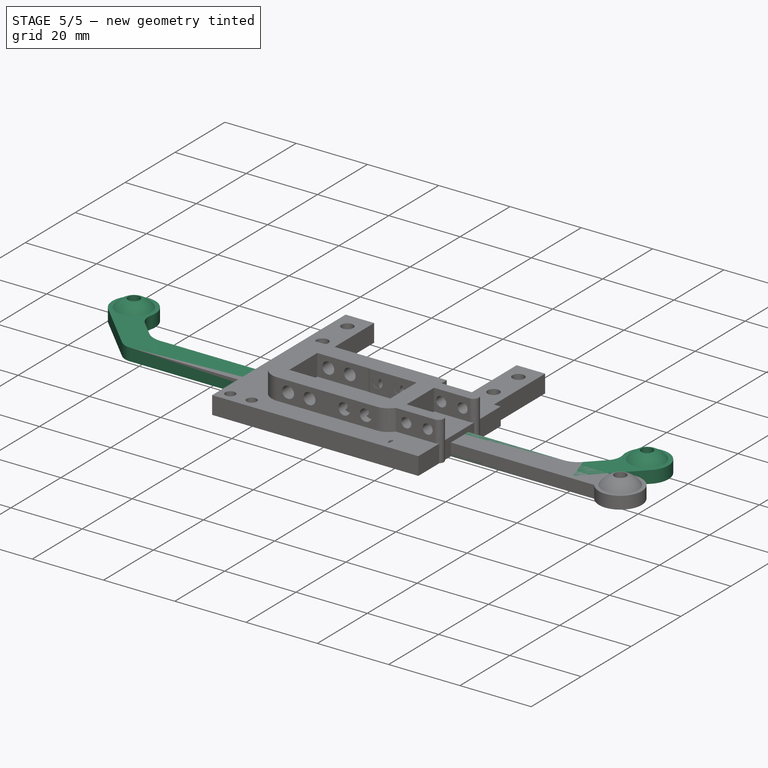
[diagram: stage 5 of 5 — iso view after this stage's code; geometry added in this stage tinted green]
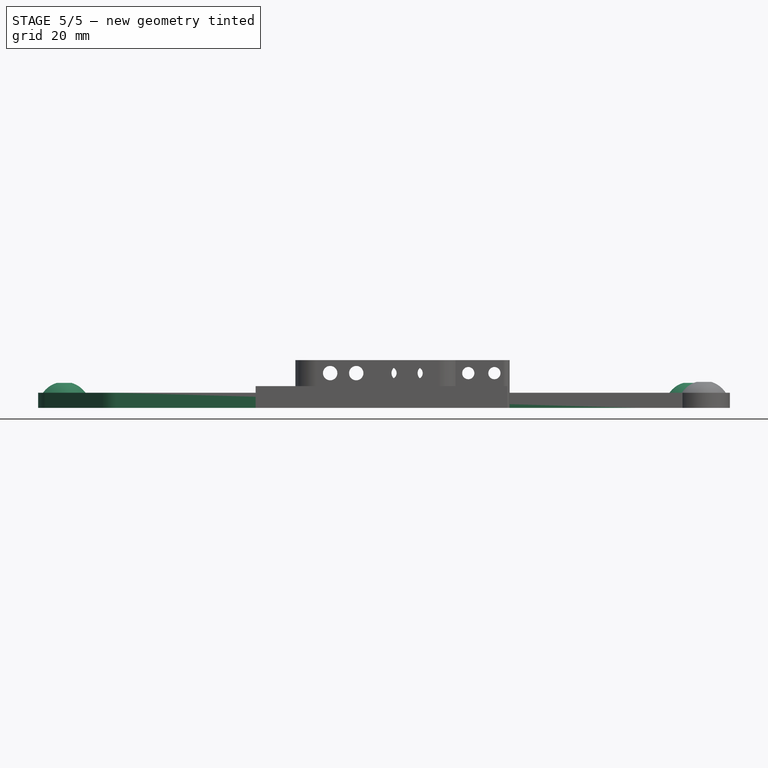
[diagram: stage 5 of 5 — front view after this stage's code; geometry added in this stage tinted green]
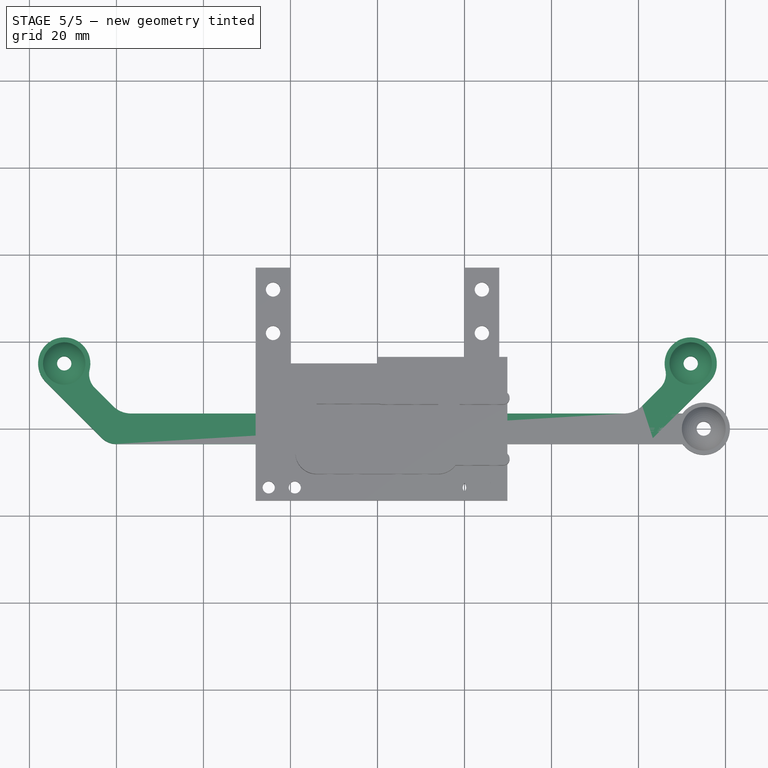
[diagram: stage 5 of 5 — top view after this stage's code; geometry added in this stage tinted green]
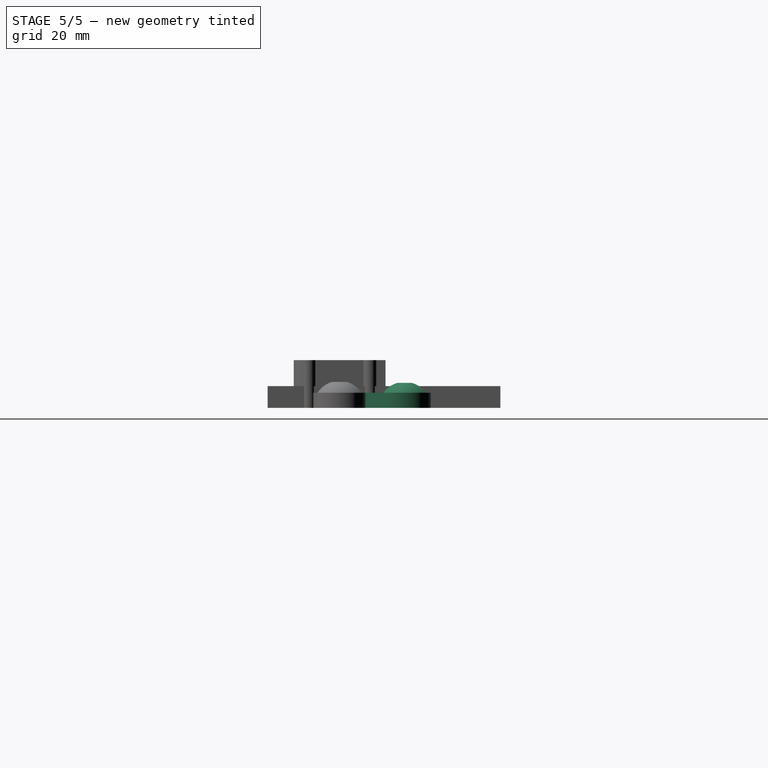
[diagram: stage 5 of 5 — right view after this stage's code; geometry added in this stage tinted green]
FEATURE [Sketcher::SketchObject] Sketch
  FullyConstrained = true
  MapMode = 5
  Support = -> [XY_Plane]
  expr: Constraints[10] = Spreadsheet.longConnCornerRoundR
  expr: Constraints[13] = Spreadsheet.connEndR
  expr: Constraints[18] = Spreadsheet.longConnCornerRoundR
  expr: Constraints[1] = Spreadsheet.connTurnLen
  expr: Constraints[22] = Spreadsheet.connWidth / 2
  expr: Constraints[23] = Spreadsheet.connWidth
  expr: Constraints[31] = Spreadsheet.connWidth
  expr: Constraints[33] = 180 - Spreadsheet.connTurnAng
  expr: Constraints[37] = Spreadsheet.connWidth
  expr: Constraints[38] = Spreadsheet.connEndR
  expr: Constraints[3] = Spreadsheet.connEndR
  expr: Constraints[44] = Spreadsheet.screwLose
  expr: Constraints[4] = Spreadsheet.longConnectScrewDist
  expr: Constraints[5] = Spreadsheet.longConnCornerRoundR
  expr: Constraints[8] = Spreadsheet.longConnCornerRoundR
  sketch-geometry (18):
    g0: LineSegment StartX=-56.6005 StartY=3.5 StartZ=0 EndX=56.6005 EndY=3.5 EndZ=0
    g1: LineSegment StartX=-60.1172 StartY=-3.5 StartZ=0 EndX=60.1172 EndY=-3.5 EndZ=0
    g2: ArcOfCircle CenterX=-72 CenterY=15 CenterZ=0 NormalX=0 NormalY=0 NormalZ=1 AngleXU=0 Radius=6 StartAngle=6.04964 EndAngle=10.2102
    g3: ArcOfCircle CenterX=72 CenterY=15 CenterZ=0 NormalX=0 NormalY=0 NormalZ=1 AngleXU=0 Radius=6 StartAngle=5.49779 EndAngle=9.65833
    g4: LineSegment StartX=60.8431 StartY=5.25736 StartZ=0 EndX=64.9644 EndY=9.3786 EndZ=0
    g5: LineSegment StartX=63.3062 StartY=-2.17905 StartZ=0 EndX=76.2426 EndY=10.7574 EndZ=0
    g6: ArcOfCircle CenterX=61.7753 CenterY=12.5677 CenterZ=0 NormalX=0 NormalY=0 NormalZ=1 AngleXU=0 Radius=4.51 StartAngle=5.49779 EndAngle=6.51673
    g7: LineSegment StartX=-63.3062 StartY=-2.17905 StartZ=0 EndX=-76.2426 EndY=10.7573 EndZ=0
    g8: ArcOfCircle CenterX=-61.7753 CenterY=12.5677 CenterZ=0 NormalX=0 NormalY=0 NormalZ=1 AngleXU=0 Radius=4.51 StartAngle=2.90804 EndAngle=3.92699
    g9: ArcOfCircle CenterX=-60.1172 CenterY=1.01 CenterZ=0 NormalX=0 NormalY=0 NormalZ=1 AngleXU=0 Radius=4.51 StartAngle=3.92699 EndAngle=4.71239
    g10: ArcOfCircle CenterX=-56.6005 CenterY=9.5 CenterZ=0 NormalX=0 NormalY=0 NormalZ=1 AngleXU=0 Radius=6 StartAngle=3.92699 EndAngle=4.71239
    g11: LineSegment StartX=-64.9644 StartY=9.3786 StartZ=0 EndX=-60.8431 EndY=5.25736 EndZ=0
    g12: ArcOfCircle CenterX=60.1172 CenterY=1.01 CenterZ=0 NormalX=0 NormalY=0 NormalZ=1 AngleXU=0 Radius=4.51 StartAngle=4.71239 EndAngle=5.49779
    g13: ArcOfCircle CenterX=56.6005 CenterY=9.5 CenterZ=0 NormalX=0 NormalY=0 NormalZ=1 AngleXU=0 Radius=6 StartAngle=4.71239 EndAngle=5.49779
    g14: LineSegment StartX=60.8431 StartY=5.25736 StartZ=0 EndX=65.7929 EndY=0.307612 EndZ=0
    g15: LineSegment StartX=-60.8431 StartY=5.25736 StartZ=0 EndX=-65.7929 EndY=0.307612 EndZ=0
    g16: Circle CenterX=-72 CenterY=15 CenterZ=0 NormalX=0 NormalY=0 NormalZ=1 AngleXU=0 Radius=1.65
    g17: Circle CenterX=72 CenterY=15 CenterZ=0 NormalX=0 NormalY=0 NormalZ=1 AngleXU=0 Radius=1.65
  constraints (45):
    c: Symmetric(g3,g2,g-2)
    c: DistanceY(g-1,g3) = 15
    c: Equal(g3,g2)
    c: Radius(g3) = 6
    c: DistanceX(g2,g3) = 144
    c: Radius(g6) = 4.51
    c: Tangent(g3,g6) = 1.5708
    c: Tangent(g4,g6) = -1.5708
    c: Radius(g8) = 4.51
    c: Tangent(g2,g8) = 1.5708
    c: Radius(g9) = 4.51
    c: Tangent(g7,g9) = 1.5708
    c: Tangent(g1,g9) = -1.5708
    c: Radius(g10) = 6
    c: Tangent(g0,g10) = -1.5708
    c: Coincident(g11,g10)
    c: Tangent(g11,g10)
    c: Parallel(g11,g7)
    c: Radius(g12) = 4.51
    c: Tangent(g5,g12) = -1.5708
    c: Tangent(g1,g12) = -1.5708
    c: Symmetric(g1,g1,g-2)
    c: DistanceY(g1,g-1) = 3.5
    c: DistanceY(g1,g0) = 7
    c: Tangent(g4,g13) = -1.5708
    c: Tangent(g0,g13) = -1.5708
    c: Symmetric(g0,g0,g-2)
    c: Parallel(g4,g5)
    c: Coincident(g14,g4)
    c: PointOnObject(g14,g5)
    c: Perpendicular(g14,g5)
    c: Distance(g14) = 7
    c: Tangent(g5,g3) = -1.5708
    c: Angle(g5,g-1) = 2.35619
    c: Coincident(g15,g10)
    c: PointOnObject(g15,g7)
    c: Perpendicular(g7,g15)
    c: Distance(g15) = 7
    c: Radius(g13) = 6
    c: Coincident(g7,g2)
    c: Tangent(g11,g8) = -1.5708
    c: Coincident(g16,g2)
    c: Coincident(g17,g3)
    c: Equal(g17,g16)
    c: Radius(g16) = 1.65
FEATURE [Spreadsheet::Sheet] Spreadsheet
  cells = A2=longConnectScrewDist; B2(longConnectScrewDist)==136 + 8; A3=connWidth; B3(connWidth)=7; A4=connPad; B4(connPad)=3.5; C4=3.5; A5=connTurnLen; B5(connTurnLen)=15; A6=longConnInner; B6(longConnInner)==B2 - B5 * 2; A7=connEndR; B7(connEndR)=6; A8=longConnCornerRoundR; B8(longConnCornerRoundR)=4.51; A9=connTurnAng; B9(connTurnAng)=45; A11=screwLose; B11(screwLose)=1.65; C11=1.5 is still tight, 1.8 is bit too lose; A12=screwTight; B12(screwTight)=1.4; A13=servoHolderWidth; B13(servoHolderWidth)=40; A14=servoHolderH; B14(servoHolderH)=22; A15=servoHolderScrewToW; B15(servoHolderScrewToW)=4; A16=servoHolderScrewBottomH; B16(servoHolderScrewBottomH)=7; A17=servoHolderScrewSep; B17(servoHolderScrewSep)=10; A18=servoHolderConnFrontLen; B18(servoHolderConnFrontLen)=15; A19=servoHolderCenterConnHousingHalfH; B19(servoHolderCenterConnHousingHalfH)=5.5; A20=servoHolderSideLen; B20(servoHolderSideLen)==B15 * 2; A21=servoHolderCenterConnWidth; B21(servoHolderCenterConnWidth)=27.75; A22=serverHolderRearDistToHousingHolder; B22(serverHolderRearDistToHousingHolder)==3 + B26 * 2 + 1.9; C22=3 is at center; A23=serverHolderPad; B23(serverHolderPad)=5; A24=serverHolderCenterToScrewH; B24(serverHolderCenterToScrewH)==B16 + B18; A25=serverHolderCenterConnHeight; B25(serverHolderCenterConnHeight)==6 + B23; A26=serverHolderScrewToSide; B26(serverHolderScrewToSide)=3; A27=serverHolderScrewDistBetween; B27(serverHolderScrewDistBetween)=6; A28=serverConnSideAdj; B28(serverConnSideAdj)=0.2; A29=serverConnCenterToRear; B29(serverConnCenterToRear)==B19 + B28 / 2 + B22; C29=Spreadsheet.servoHolderCenterConnHousingHalfH + Spreadsheet.serverConnSideAdj / 2 + Spreadsheet.serverHolderRearDistToHousingHolder; A31=servoWFromCenterToSide; B31==B13 / 2 + B20; C31=servoHolderWidth/2+servoHolderSideLen; A32=sideCoverCenterToHousigSide; B32==B31 - B21 / 2; A33=sideSupportBelow0Len; B33=32; A34=sideCoverCenterToFirstScrew; B34(sideCoverCenterToFirstScrew)==B33 - B32 + B26; A35=sideConnWidth; B35(sideConnWidth)=11; C35=with of the gap; A36=sideCoverFullWidth; B36(sideCoverFullWidth)==B34 + B27 + B26; A37=sideCoverPad; B37(sideCoverPad)=5; C37=need to increase  from1; A38=sideCoverConnHeight; B38(sideCoverConnHeight)==B37 + 6; A39=sideCoverDownPad; B39(sideCoverDownPad)=3; A41=frontSteeringRodLength; B41(frontSteeringRodLength)=75
FEATURE [PartDesign::Pad] Pad
  Direction = (0,0,1)
  Length = 3.5
  Length2 = 10
  Profile = -> Sketch
  ReferenceAxis = -> Sketch [N_Axis]
  Type = 0
  expr: Length = Spreadsheet.connPad
FEATURE [PartDesign::Line] DatumLine
  AttacherType = Attacher::AttachEngineLine
  Length = 20
  MapMode = 19
  Placement = pos=(-72,15,0) rot=(0,0,1;0rad)
  ResizeMode = 0
  Support = -> [Pad]
FEATURE [PartDesign::Line] DatumLine001
  AttacherType = Attacher::AttachEngineLine
  Length = 20
  MapMode = 19
  Placement = pos=(72,15,0) rot=(0,0,1;0rad)
  ResizeMode = 0
  Support = -> [Pad]
FEATURE [Sketcher::SketchObject] Sketch001
  AttachmentOffset = pos=(0,0,-15) rot=(0,0,1;0rad)
  ExternalGeometry = -> [DatumLine]
  FullyConstrained = true
  MapMode = 5
  Placement = pos=(0,15,3.3e-15) rot=(1,0,0;1.5708rad)
  Support = -> [XZ_Plane]
  expr: .AttachmentOffset.Base.z = -Spreadsheet.connTurnLen
  expr: Constraints[0] = Spreadsheet.connEndR
  expr: Constraints[6] = Spreadsheet.screwLose
  sketch-geometry (4):
    g0: ArcOfCircle CenterX=-72 CenterY=0 CenterZ=0 NormalX=0 NormalY=0 NormalZ=1 AngleXU=0 Radius=6 StartAngle=1.84939 EndAngle=3.14159
    g1: LineSegment StartX=-78 StartY=0 StartZ=0 EndX=-73.65 EndY=0 EndZ=0
    g2: LineSegment StartX=-73.65 StartY=0 StartZ=0 EndX=-73.65 EndY=5.76867 EndZ=0
    g3: GeomPoint X=-72 Y=0 Z=0
  constraints (11):
    c: Radius(g0) = 6
    c: Horizontal(g1)
    c: Coincident(g0,g1)
    c: Vertical(g2)
    c: Coincident(g0,g2)
    c: Coincident(g1,g2)
    c: DistanceX(g1,g3) = 1.65
    c: PointOnObject(g3,g-1)
    c: PointOnObject(g3,g-3)
    c: Coincident(g0,g3)
    c: PointOnObject(g1,g-1)
FEATURE [PartDesign::Revolution] Revolution
  Angle = 360
  Axis = (0,2e-16,1)
  Base = (-72,15,0)
  BaseFeature = -> Pad
  Profile = -> Sketch001
  ReferenceAxis = -> DatumLine
FEATURE [Sketcher::SketchObject] Sketch002
  AttachmentOffset = pos=(0,0,-15) rot=(0,0,1;0rad)
  ExternalGeometry = -> [DatumLine001]
  FullyConstrained = true
  MapMode = 5
  Placement = pos=(0,15,3.3e-15) rot=(1,0,0;1.5708rad)
  Support = -> [XZ_Plane]
  expr: .AttachmentOffset.Base.z = -Spreadsheet.connTurnLen
  expr: Constraints[10] = Spreadsheet.screwLose
  expr: Constraints[3] = Spreadsheet.connEndR
  sketch-geometry (4):
    g0: GeomPoint X=72 Y=0 Z=0
    g1: ArcOfCircle CenterX=72 CenterY=0 CenterZ=0 NormalX=0 NormalY=0 NormalZ=1 AngleXU=0 Radius=6 StartAngle=0 EndAngle=1.29221
    g2: LineSegment StartX=78 StartY=0 StartZ=0 EndX=73.65 EndY=0 EndZ=0
    g3: LineSegment StartX=73.65 StartY=0 StartZ=0 EndX=73.65 EndY=5.76867 EndZ=0
  constraints (11):
    c: PointOnObject(g0,g-1)
    c: PointOnObject(g0,g-3)
    c: Coincident(g1,g0)
    c: Radius(g1) = 6
    c: Horizontal(g2)
    c: PointOnObject(g2,g-1)
    c: Coincident(g1,g2)
    c: Vertical(g3)
    c: Coincident(g1,g3)
    c: Coincident(g2,g3)
    c: DistanceX(g1,g2) = 1.65
FEATURE [PartDesign::Revolution] Revolution001
  Angle = 360
  Axis = (0,2e-16,1)
  Base = (72,15,0)
  BaseFeature = -> Revolution
  Profile = -> Sketch002
  ReferenceAxis = -> DatumLine001
  Reversed = true
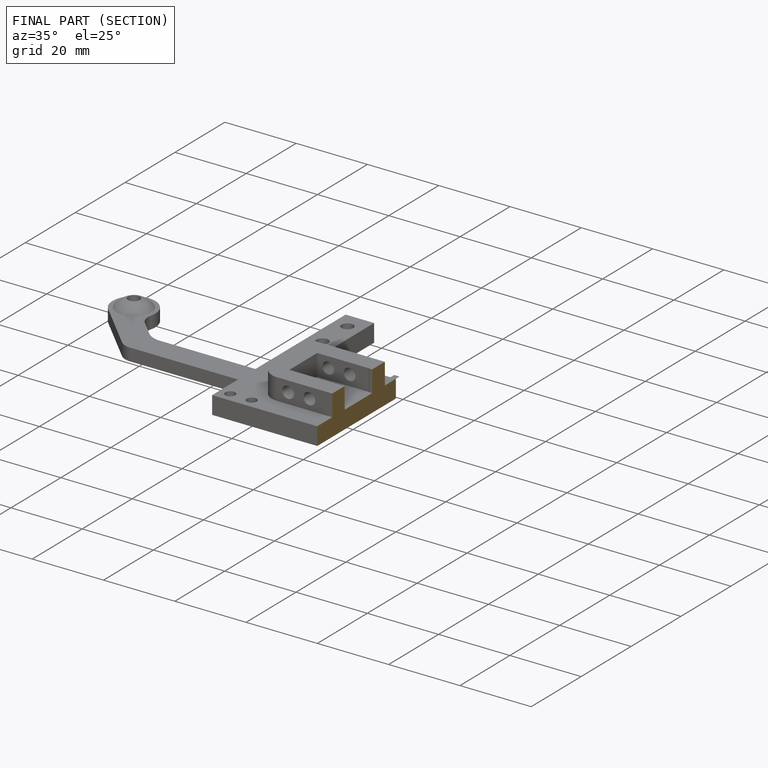
[diagram: finished part — half-section view (interior)]
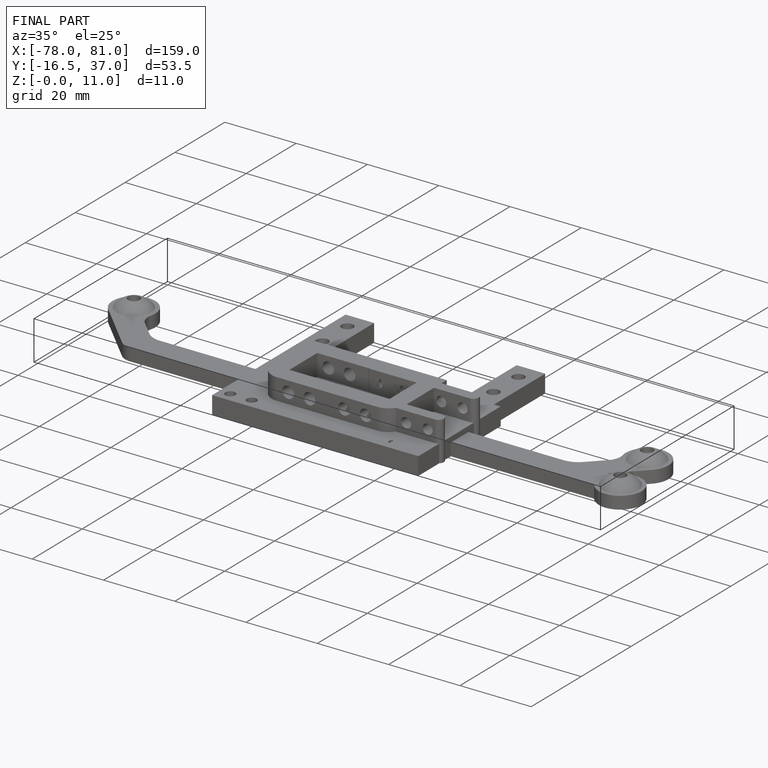
[diagram: finished part — iso view with bounding-box wireframe]
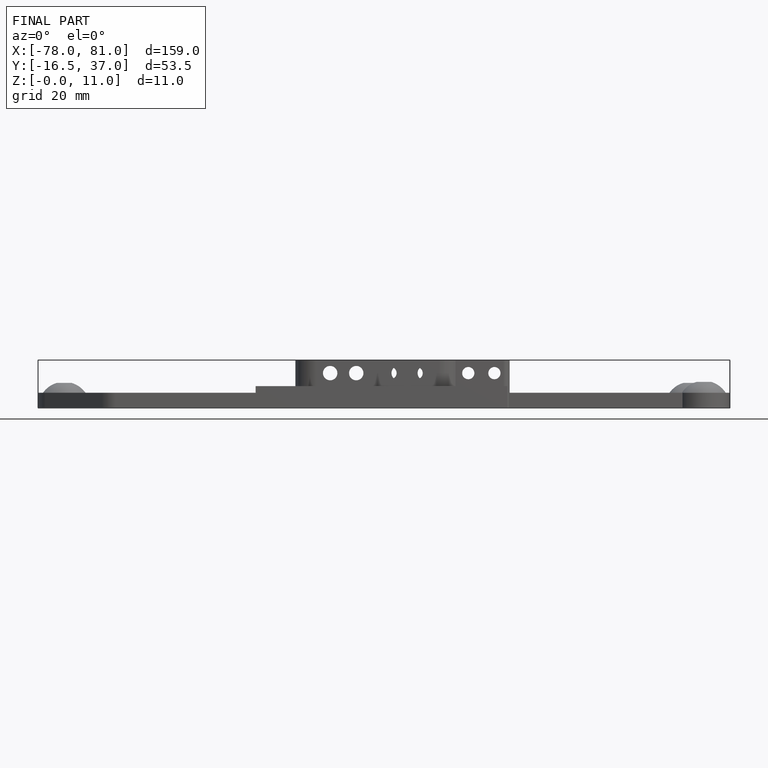
[diagram: finished part — front view with bounding-box wireframe]
